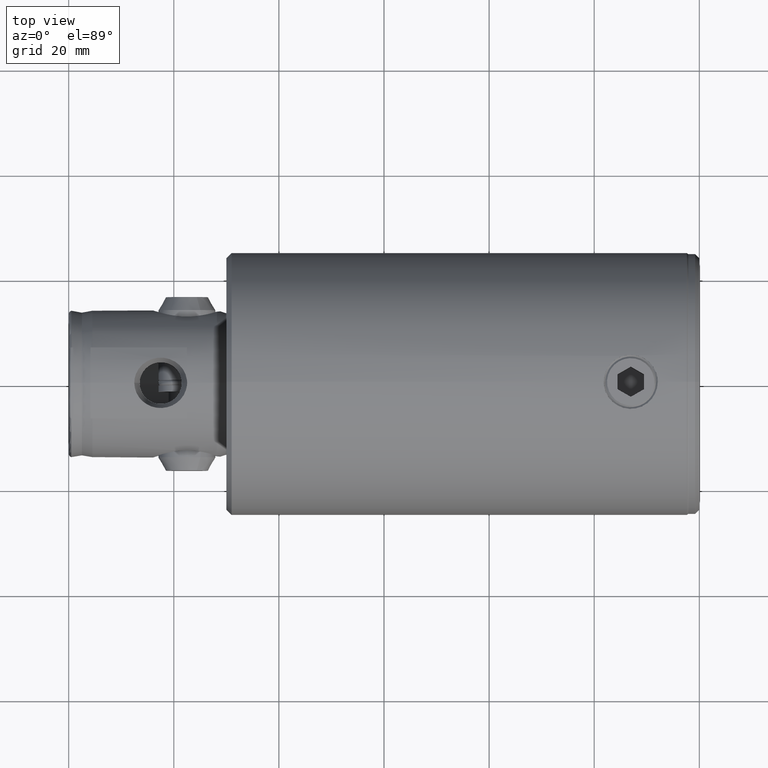
[diagram: clean part render]
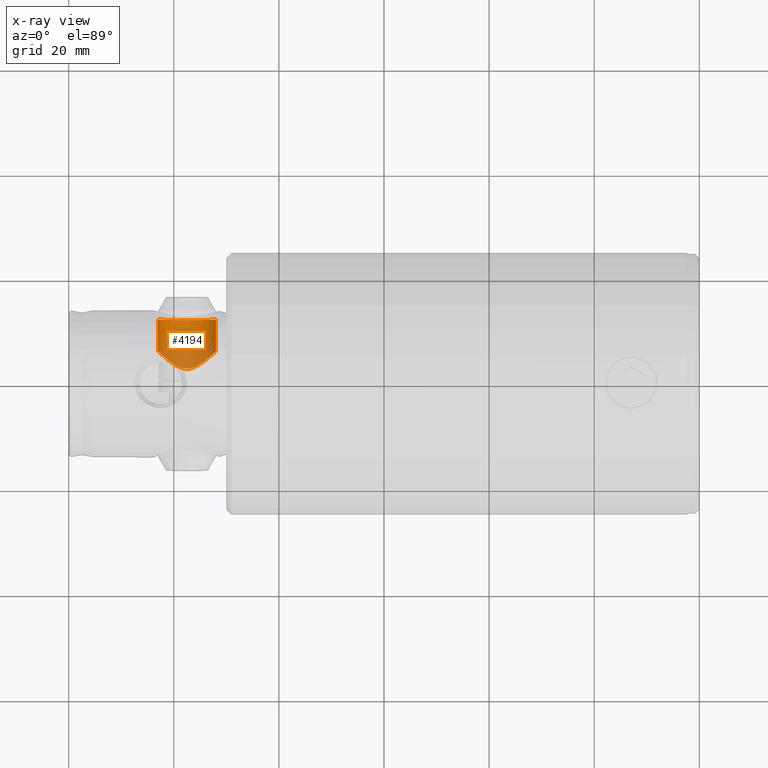
[diagram: x-ray — body ghosted, one internal face saturated and labeled with its STEP entity id]
A machine part, top view, then the same camera in x-ray: the body is ghosted and one INTERNAL B-rep face — a face not visible from any outside direction — is saturated and labeled: STEP entity #4194.
In plain terms, the highlighted cylindrical surface (edge-blend (fillet) strip) has radius 5.5 mm, axis along (0, 1, 0).
Its self-contained STEP definition (entity closure, byte-faithful):
#118 = CARTESIAN_POINT ( 'NONE',  ( -1.527706867127086600, 6.063294858120870300, 102.7869542390123200 ) ) ;
#128 = CARTESIAN_POINT ( 'NONE',  ( -5.500223658739678000, 2.968171142790321200, 97.69064902195994200 ) ) ;
#137 = ORIENTED_EDGE ( 'NONE', *, *, #3502, .T. ) ;
#149 = CARTESIAN_POINT ( 'NONE',  ( -0.7790724367791734800, 6.212973103078052600, 102.9580258450019000 ) ) ;
#198 = EDGE_LOOP ( 'NONE', ( #137, #3225, #1700, #2597 ) ) ;
#239 = CYLINDRICAL_SURFACE ( 'NONE', #4601, 5.500000000000005300 ) ;
#254 = CARTESIAN_POINT ( 'NONE',  ( -2.394423400148260500, 5.775983920539884400, 92.54510982370591400 ) ) ;
#355 = B_SPLINE_CURVE_WITH_KNOTS ( 'NONE', 3,
 ( #4699, #3194, #149, #4286, #118, #3566, #3579, #4716, #4684, #1646, #3231, #2032, #4666, #937, #2045, #4347, #2096, #886, #2447, #3926, #128, #2805, #518, #3273, #4019, #648, #2999, #4659, #2419, #3937, #2641, #551, #767, #2470, #4378, #871, #254, #4493, #1479, #4872, #2623, #2277, #696, #3373 ),
 .UNSPECIFIED., .F., .F.,
 ( 4, 2, 2, 2, 2, 2, 2, 2, 2, 2, 2, 2, 2, 2, 2, 2, 2, 2, 2, 2, 2, 4 ),
 ( 1.053528519688846400E-019, 0.001164282889777358300, 0.001746424334666037400, 0.002328565779554716200, 0.003492848669332089100, 0.004657131559109463700, 0.005821414448886836100, 0.006985697338664208600, 0.008149980228441582700, 0.008732121673330270700, 0.009314263118218958600, 0.009896404563107646600, 0.01047854600799633300, 0.01164282889777374500, 0.01280711178755115600, 0.01397139467732856800, 0.01513567756710598400, 0.01571781901199470100, 0.01629996045688342200, 0.01746424334666085700, 0.01804638479154957500, 0.01862852623643829200 ),
 .UNSPECIFIED. ) ;
#420 = DIRECTION ( 'NONE',  ( 0.0000000000000000000, 1.000000000000000000, 0.0000000000000000000 ) ) ;
#481 = CARTESIAN_POINT ( 'NONE',  ( 1.089894992635394900E-016, 6.249999999999976000, 103.0000000000000100 ) ) ;
#485 = CARTESIAN_POINT ( 'NONE',  ( 6.735557395310443000E-016, 12.24999999999998200, 92.00000000000000000 ) ) ;
#518 = CARTESIAN_POINT ( 'NONE',  ( -5.488850727272873300, 2.989450329128836300, 97.10101927090308000 ) ) ;
#551 = CARTESIAN_POINT ( 'NONE',  ( -3.712649697442926400, 5.037035433380102000, 93.42795503931679900 ) ) ;
#648 = CARTESIAN_POINT ( 'NONE',  ( -5.301566815451748100, 3.313434614663495600, 95.99005210468642700 ) ) ;
#649 = VECTOR ( 'NONE', #4503, 1000.000000000000000 ) ;
#696 = CARTESIAN_POINT ( 'NONE',  ( -0.1939661673218800200, 6.249999999999975100, 91.99999999999997200 ) ) ;
#767 = CARTESIAN_POINT ( 'NONE',  ( -3.449508652452194700, 5.222397952168242000, 93.20195232534503300 ) ) ;
#783 = VECTOR ( 'NONE', #1430, 1000.000000000000000 ) ;
#813 = CARTESIAN_POINT ( 'NONE',  ( 6.735510828222507400E-016, 6.249999999999976000, 92.00000000000000000 ) ) ;
#871 = CARTESIAN_POINT ( 'NONE',  ( -2.558628673267801600, 5.704909788157392500, 92.62807210080043800 ) ) ;
#886 = CARTESIAN_POINT ( 'NONE',  ( -5.419604472220328300, 3.113842012824069800, 98.45498841677189700 ) ) ;
#937 = CARTESIAN_POINT ( 'NONE',  ( -4.767957255682963700, 4.050052514602263900, 100.2619339417831800 ) ) ;
#1095 = DIRECTION ( 'NONE',  ( 0.0000000000000000000, 0.0000000000000000000, 1.000000000000000000 ) ) ;
#1293 = EDGE_CURVE ( 'NONE', #2307, #1798, #4140, .T. ) ;
#1404 = VERTEX_POINT ( 'NONE', #813 ) ;
#1430 = DIRECTION ( 'NONE',  ( 0.0000000000000000000, 1.000000000000000000, 0.0000000000000000000 ) ) ;
#1479 = CARTESIAN_POINT ( 'NONE',  ( -1.531053231994146300, 6.071666344254226500, 92.20338236169915500 ) ) ;
#1570 = CARTESIAN_POINT ( 'NONE',  ( 0.0000000000000000000, -15.00000000000000000, 97.50000000000000000 ) ) ;
#1575 = CARTESIAN_POINT ( 'NONE',  ( 0.0000000000000000000, 12.24999999999998200, 103.0000000000000100 ) ) ;
#1646 = CARTESIAN_POINT ( 'NONE',  ( -3.455956524004319100, 5.218213733927725300, 101.7929810702618600 ) ) ;
#1700 = ORIENTED_EDGE ( 'NONE', *, *, #1293, .T. ) ;
#1787 = LINE ( 'NONE', #4032, #783 ) ;
#1798 = VERTEX_POINT ( 'NONE', #1575 ) ;
#1827 = CARTESIAN_POINT ( 'NONE',  ( 0.0000000000000000000, 12.24999999999998200, 97.50000000000000000 ) ) ;
#1969 = DIRECTION ( 'NONE',  ( 0.0000000000000000000, 0.0000000000000000000, 1.000000000000000000 ) ) ;
#2032 = CARTESIAN_POINT ( 'NONE',  ( -4.186077281160453200, 4.650981741577073300, 101.0834819035318300 ) ) ;
#2045 = CARTESIAN_POINT ( 'NONE',  ( -4.927112459629756600, 3.852082158463313800, 99.96810099416160300 ) ) ;
#2096 = CARTESIAN_POINT ( 'NONE',  ( -5.305184312957208300, 3.307569843572313800, 98.99715779110586300 ) ) ;
#2166 = LINE ( 'NONE', #4097, #649 ) ;
#2277 = CARTESIAN_POINT ( 'NONE',  ( -0.3872994467990231200, 6.240990005351183500, 92.01023212897308700 ) ) ;
#2307 = VERTEX_POINT ( 'NONE', #485 ) ;
#2375 = AXIS2_PLACEMENT_3D ( 'NONE', #1827, #4471, #1095 ) ;
#2419 = CARTESIAN_POINT ( 'NONE',  ( -4.762344913012953800, 4.056580381646538700, 94.72860456548785600 ) ) ;
#2447 = CARTESIAN_POINT ( 'NONE',  ( -5.449769014668594200, 3.060104322513073500, 98.26605657609637500 ) ) ;
#2470 = CARTESIAN_POINT ( 'NONE',  ( -3.020347645619347000, 5.474259098557527500, 92.90020858746409300 ) ) ;
#2597 = ORIENTED_EDGE ( 'NONE', *, *, #4422, .F. ) ;
#2623 = CARTESIAN_POINT ( 'NONE',  ( -0.7727058857407990100, 6.205069115048252600, 92.05110307003410200 ) ) ;
#2641 = CARTESIAN_POINT ( 'NONE',  ( -4.185379369167640600, 4.651676393430180100, 93.91560082107277200 ) ) ;
#2805 = CARTESIAN_POINT ( 'NONE',  ( -5.499769017631833500, 2.969013469445683100, 97.29665768165239100 ) ) ;
#2999 = CARTESIAN_POINT ( 'NONE',  ( -5.193641672131923800, 3.484478092758245700, 95.65752599857329100 ) ) ;
#3063 = FACE_OUTER_BOUND ( 'NONE', #198, .T. ) ;
#3194 = CARTESIAN_POINT ( 'NONE',  ( -0.3947357316503940500, 6.249999999999975100, 103.0000000000000300 ) ) ;
#3225 = ORIENTED_EDGE ( 'NONE', *, *, #4083, .T. ) ;
#3231 = CARTESIAN_POINT ( 'NONE',  ( -3.715047786313647700, 5.035205468472667300, 101.5697672540569000 ) ) ;
#3273 = CARTESIAN_POINT ( 'NONE',  ( -5.447811780406457400, 3.063599579233069900, 96.72024700466155900 ) ) ;
#3373 = CARTESIAN_POINT ( 'NONE',  ( 6.735510828222507400E-016, 6.249999999999976000, 92.00000000000000000 ) ) ;
#3502 = EDGE_CURVE ( 'NONE', #4895, #1404, #355, .T. ) ;
#3566 = CARTESIAN_POINT ( 'NONE',  ( -1.887292660880617500, 5.961170960521800000, 102.6695163999607800 ) ) ;
#3579 = CARTESIAN_POINT ( 'NONE',  ( -2.060932575377876700, 5.903170074214135500, 102.6025828384091800 ) ) ;
#3926 = CARTESIAN_POINT ( 'NONE',  ( -5.489907914886091900, 2.987495918654304600, 97.88436451071010000 ) ) ;
#3937 = CARTESIAN_POINT ( 'NONE',  ( -4.393784672854434500, 4.453137064121133200, 94.17506120755216200 ) ) ;
#4019 = CARTESIAN_POINT ( 'NONE',  ( -5.417320538560761500, 3.117832274766374000, 96.53212783963839200 ) ) ;
#4032 = CARTESIAN_POINT ( 'NONE',  ( 0.0000000000000000000, -15.00000000000000000, 103.0000000000000100 ) ) ;
#4083 = EDGE_CURVE ( 'NONE', #1404, #2307, #2166, .T. ) ;
#4097 = CARTESIAN_POINT ( 'NONE',  ( 6.735557395310443000E-016, -15.00000000000000000, 92.00000000000000000 ) ) ;
#4140 = CIRCLE ( 'NONE', #2375, 5.500000000000005300 ) ;
#4194 = ADVANCED_FACE ( 'NONE', ( #3063 ), #239, .F. ) ;
#4286 = CARTESIAN_POINT ( 'NONE',  ( -1.341380662347671600, 6.107337396853852200, 102.8373633861012500 ) ) ;
#4347 = CARTESIAN_POINT ( 'NONE',  ( -5.195883627430198700, 3.481058384398772800, 99.33596106642360700 ) ) ;
#4378 = CARTESIAN_POINT ( 'NONE',  ( -2.871048517440080200, 5.554246734633530900, 92.80539218324121000 ) ) ;
#4422 = EDGE_CURVE ( 'NONE', #4895, #1798, #1787, .T. ) ;
#4471 = DIRECTION ( 'NONE',  ( 0.0000000000000000000, 1.000000000000000000, 0.0000000000000000000 ) ) ;
#4493 = CARTESIAN_POINT ( 'NONE',  ( -1.887064351694109200, 5.969296676378002400, 92.32063822022269100 ) ) ;
#4503 = DIRECTION ( 'NONE',  ( 0.0000000000000000000, 1.000000000000000000, 0.0000000000000000000 ) ) ;
#4601 = AXIS2_PLACEMENT_3D ( 'NONE', #1570, #420, #1969 ) ;
#4659 = CARTESIAN_POINT ( 'NONE',  ( -4.923211508061814200, 3.857134926899127500, 95.02399258657682400 ) ) ;
#4666 = CARTESIAN_POINT ( 'NONE',  ( -4.398451997037956800, 4.448590989606573000, 100.8189328888284000 ) ) ;
#4684 = CARTESIAN_POINT ( 'NONE',  ( -2.881909146059816100, 5.555896844130274700, 102.1976506510479500 ) ) ;
#4699 = CARTESIAN_POINT ( 'NONE',  ( 1.089894992635394900E-016, 6.249999999999976000, 103.0000000000000100 ) ) ;
#4716 = CARTESIAN_POINT ( 'NONE',  ( -2.565111979204477000, 5.710704033264774700, 102.3790756651713100 ) ) ;
#4872 = CARTESIAN_POINT ( 'NONE',  ( -0.9663114038535128800, 6.177817682610074400, 92.08213022746277000 ) ) ;
#4895 = VERTEX_POINT ( 'NONE', #481 ) ;